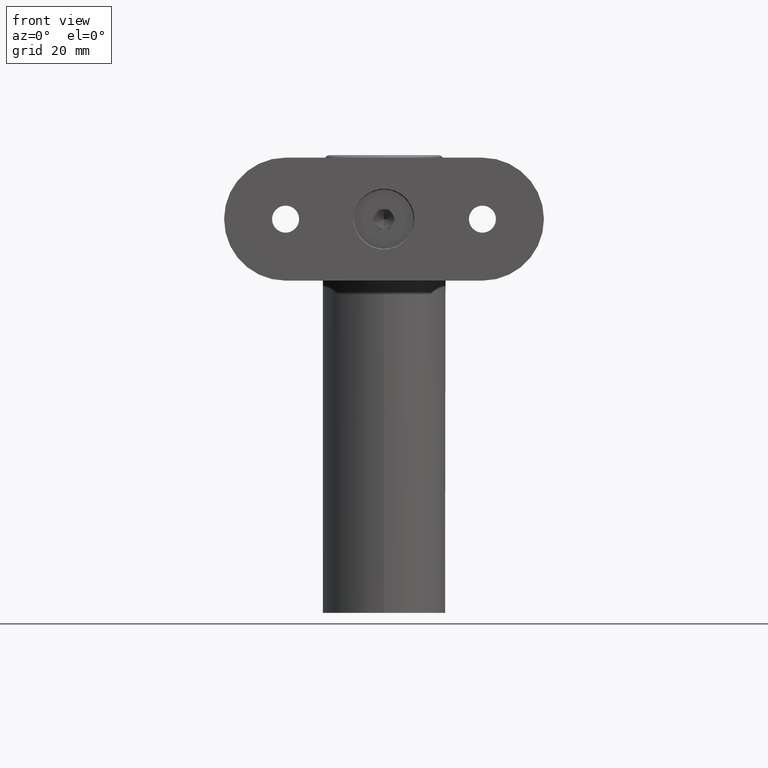
[diagram: clean part render]
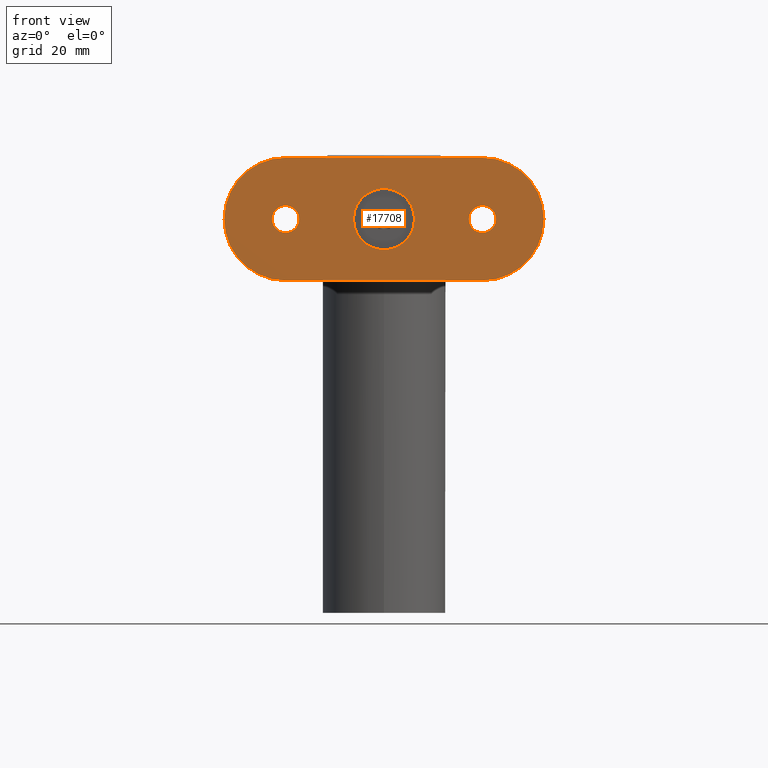
[diagram: same view with one face highlighted and labeled with its STEP entity id]
A machine part, front view. The second image highlights one B-rep face of the part: STEP entity #17708.
In plain terms, the highlighted planar face has unit normal (-0, 1, -0).
Its self-contained STEP definition (entity closure, byte-faithful):
#3 = AXIS2_PLACEMENT_3D ( 'NONE', #701, #11552, #11491 ) ;
#701 = CARTESIAN_POINT ( 'NONE',  ( 0.000000000000000000, 2.000000000000001776, -20.00000000000000355 ) ) ;
#1814 = LINE ( 'NONE', #9295, #7294 ) ;
#2335 = DIRECTION ( 'NONE',  ( 0.000000000000000000, 0.000000000000000000, -1.000000000000000000 ) ) ;
#2587 = CIRCLE ( 'NONE', #17169, 2.749999999999999112 ) ;
#2764 = FACE_BOUND ( 'NONE', #18467, .T. ) ;
#3061 = DIRECTION ( 'NONE',  ( 0.000000000000000000, 0.000000000000000000, -1.000000000000000000 ) ) ;
#3067 = CARTESIAN_POINT ( 'NONE',  ( 0.000000000000000000, 2.000000000000001776, 20.00000000000000000 ) ) ;
#3829 = CARTESIAN_POINT ( 'NONE',  ( 12.49999999999999645, 2.000000000000001776, -20.00000000000000355 ) ) ;
#4493 = VECTOR ( 'NONE', #2335, 1000.000000000000000 ) ;
#4657 = VERTEX_POINT ( 'NONE', #17727 ) ;
#5150 = ORIENTED_EDGE ( 'NONE', *, *, #10552, .F. ) ;
#5397 = CARTESIAN_POINT ( 'NONE',  ( 0.000000000000000000, 2.000000000000001776, 0.000000000000000000 ) ) ;
#5648 = AXIS2_PLACEMENT_3D ( 'NONE', #19253, #10252, #16342 ) ;
#5781 = VERTEX_POINT ( 'NONE', #14085 ) ;
#5865 = EDGE_CURVE ( 'NONE', #5781, #4657, #6717, .T. ) ;
#6243 = AXIS2_PLACEMENT_3D ( 'NONE', #7435, #14838, #18199 ) ;
#6267 = VERTEX_POINT ( 'NONE', #15322 ) ;
#6379 = CIRCLE ( 'NONE', #17323, 6.200000000000001066 ) ;
#6410 = CARTESIAN_POINT ( 'NONE',  ( 0.000000000000000000, 2.000000000000001776, -32.50000000000000000 ) ) ;
#6427 = DIRECTION ( 'NONE',  ( 8.881784197001252323E-16, 0.000000000000000000, -1.000000000000000000 ) ) ;
#6551 = CARTESIAN_POINT ( 'NONE',  ( 0.000000000000000000, 2.000000000000001776, 20.00000000000000000 ) ) ;
#6717 = CIRCLE ( 'NONE', #14293, 2.749999999999999112 ) ;
#6746 = DIRECTION ( 'NONE',  ( 0.000000000000000000, 1.000000000000000000, 0.000000000000000000 ) ) ;
#6798 = FACE_BOUND ( 'NONE', #8223, .T. ) ;
#6861 = LINE ( 'NONE', #16255, #4493 ) ;
#7026 = DIRECTION ( 'NONE',  ( 0.000000000000000000, 1.000000000000000000, 0.000000000000000000 ) ) ;
#7030 = CIRCLE ( 'NONE', #11352, 12.49999999999999645 ) ;
#7076 = CARTESIAN_POINT ( 'NONE',  ( 0.000000000000000000, 2.000000000000001776, 20.00000000000000000 ) ) ;
#7282 = EDGE_CURVE ( 'NONE', #10695, #9007, #7030, .T. ) ;
#7285 = FACE_OUTER_BOUND ( 'NONE', #10263, .T. ) ;
#7294 = VECTOR ( 'NONE', #16863, 1000.000000000000000 ) ;
#7435 = CARTESIAN_POINT ( 'NONE',  ( 0.000000000000000000, 2.000000000000001776, 20.00000000000000000 ) ) ;
#7653 = DIRECTION ( 'NONE',  ( 0.000000000000000000, -1.000000000000000000, 0.000000000000000000 ) ) ;
#7659 = EDGE_CURVE ( 'NONE', #4657, #5781, #17485, .T. ) ;
#7976 = ORIENTED_EDGE ( 'NONE', *, *, #16733, .T. ) ;
#8223 = EDGE_LOOP ( 'NONE', ( #11694, #18075 ) ) ;
#8793 = CIRCLE ( 'NONE', #6243, 12.50000000000000000 ) ;
#8794 = EDGE_CURVE ( 'NONE', #14181, #9007, #6861, .T. ) ;
#8915 = CARTESIAN_POINT ( 'NONE',  ( -12.50000000000001066, 2.000000000000001776, -20.00000000000000355 ) ) ;
#8968 = FACE_BOUND ( 'NONE', #14114, .T. ) ;
#8995 = CIRCLE ( 'NONE', #5648, 6.200000000000001066 ) ;
#9007 = VERTEX_POINT ( 'NONE', #8915 ) ;
#9140 = AXIS2_PLACEMENT_3D ( 'NONE', #12239, #7653, #3061 ) ;
#9295 = CARTESIAN_POINT ( 'NONE',  ( 12.49999999999999645, 2.000000000000001776, 32.50000000000000000 ) ) ;
#9483 = ORIENTED_EDGE ( 'NONE', *, *, #11752, .F. ) ;
#9657 = AXIS2_PLACEMENT_3D ( 'NONE', #6551, #18846, #6427 ) ;
#10252 = DIRECTION ( 'NONE',  ( 0.000000000000000000, -1.000000000000000000, 0.000000000000000000 ) ) ;
#10263 = EDGE_LOOP ( 'NONE', ( #17900, #15148, #10272, #17227, #7976, #19348 ) ) ;
#10272 = ORIENTED_EDGE ( 'NONE', *, *, #7282, .T. ) ;
#10477 = AXIS2_PLACEMENT_3D ( 'NONE', #3067, #10774, #19832 ) ;
#10552 = EDGE_CURVE ( 'NONE', #16421, #18427, #12164, .T. ) ;
#10695 = VERTEX_POINT ( 'NONE', #6410 ) ;
#10706 = AXIS2_PLACEMENT_3D ( 'NONE', #13304, #7026, #17865 ) ;
#10774 = DIRECTION ( 'NONE',  ( 0.000000000000000000, 1.000000000000000000, 0.000000000000000000 ) ) ;
#11116 = EDGE_CURVE ( 'NONE', #12173, #13318, #8793, .T. ) ;
#11352 = AXIS2_PLACEMENT_3D ( 'NONE', #17214, #18769, #17146 ) ;
#11491 = DIRECTION ( 'NONE',  ( 0.000000000000000000, 0.000000000000000000, -1.000000000000000000 ) ) ;
#11552 = DIRECTION ( 'NONE',  ( -0.000000000000000000, 1.000000000000000000, -0.000000000000000000 ) ) ;
#11694 = ORIENTED_EDGE ( 'NONE', *, *, #13566, .T. ) ;
#11752 = EDGE_CURVE ( 'NONE', #18427, #16421, #2587, .T. ) ;
#12164 = CIRCLE ( 'NONE', #10477, 2.749999999999999112 ) ;
#12173 = VERTEX_POINT ( 'NONE', #14334 ) ;
#12239 = CARTESIAN_POINT ( 'NONE',  ( -12.50000000000001066, 2.000000000000001776, 32.50000000000005684 ) ) ;
#12360 = CARTESIAN_POINT ( 'NONE',  ( 3.367778697655220026E-16, 2.000000000000001776, 17.25000000000000000 ) ) ;
#13154 = EDGE_CURVE ( 'NONE', #18499, #6267, #6379, .T. ) ;
#13304 = CARTESIAN_POINT ( 'NONE',  ( 0.000000000000000000, 2.000000000000001776, -20.00000000000000000 ) ) ;
#13318 = VERTEX_POINT ( 'NONE', #18192 ) ;
#13496 = DIRECTION ( 'NONE',  ( 0.000000000000000000, 0.000000000000000000, -1.000000000000000000 ) ) ;
#13566 = EDGE_CURVE ( 'NONE', #6267, #18499, #8995, .T. ) ;
#13695 = CARTESIAN_POINT ( 'NONE',  ( 7.592810154713590821E-16, 2.000000000000001776, 6.200000000000001066 ) ) ;
#13752 = ORIENTED_EDGE ( 'NONE', *, *, #5865, .F. ) ;
#13810 = CIRCLE ( 'NONE', #3, 12.49999999999999645 ) ;
#13854 = CARTESIAN_POINT ( 'NONE',  ( -12.50000000000001066, 2.000000000000001776, 20.00000000000000000 ) ) ;
#13859 = EDGE_CURVE ( 'NONE', #13318, #19172, #1814, .T. ) ;
#13911 = PLANE ( 'NONE',  #9140 ) ;
#14085 = CARTESIAN_POINT ( 'NONE',  ( 0.000000000000000000, 2.000000000000001776, -17.25000000000000000 ) ) ;
#14114 = EDGE_LOOP ( 'NONE', ( #9483, #5150 ) ) ;
#14181 = VERTEX_POINT ( 'NONE', #13854 ) ;
#14293 = AXIS2_PLACEMENT_3D ( 'NONE', #17567, #6746, #17631 ) ;
#14334 = CARTESIAN_POINT ( 'NONE',  ( 0.000000000000000000, 2.000000000000001776, 32.50000000000000000 ) ) ;
#14522 = ORIENTED_EDGE ( 'NONE', *, *, #7659, .F. ) ;
#14619 = DIRECTION ( 'NONE',  ( 0.000000000000000000, 0.000000000000000000, 1.000000000000000000 ) ) ;
#14838 = DIRECTION ( 'NONE',  ( -0.000000000000000000, 1.000000000000000000, -0.000000000000000000 ) ) ;
#15091 = DIRECTION ( 'NONE',  ( 0.000000000000000000, -1.000000000000000000, 0.000000000000000000 ) ) ;
#15148 = ORIENTED_EDGE ( 'NONE', *, *, #16102, .T. ) ;
#15322 = CARTESIAN_POINT ( 'NONE',  ( 0.000000000000000000, 2.000000000000001776, -6.200000000000001066 ) ) ;
#16102 = EDGE_CURVE ( 'NONE', #19172, #10695, #13810, .T. ) ;
#16255 = CARTESIAN_POINT ( 'NONE',  ( -12.50000000000001066, 2.000000000000001776, 32.50000000000005684 ) ) ;
#16342 = DIRECTION ( 'NONE',  ( 0.000000000000000000, 0.000000000000000000, -1.000000000000000000 ) ) ;
#16372 = CARTESIAN_POINT ( 'NONE',  ( 0.000000000000000000, 2.000000000000001776, 22.75000000000000000 ) ) ;
#16421 = VERTEX_POINT ( 'NONE', #12360 ) ;
#16733 = EDGE_CURVE ( 'NONE', #14181, #12173, #19329, .T. ) ;
#16863 = DIRECTION ( 'NONE',  ( 0.000000000000000000, 0.000000000000000000, -1.000000000000000000 ) ) ;
#17146 = DIRECTION ( 'NONE',  ( 0.000000000000000000, 0.000000000000000000, -1.000000000000000000 ) ) ;
#17169 = AXIS2_PLACEMENT_3D ( 'NONE', #7076, #17915, #14619 ) ;
#17214 = CARTESIAN_POINT ( 'NONE',  ( 0.000000000000000000, 2.000000000000001776, -20.00000000000000355 ) ) ;
#17227 = ORIENTED_EDGE ( 'NONE', *, *, #8794, .F. ) ;
#17323 = AXIS2_PLACEMENT_3D ( 'NONE', #5397, #15091, #13496 ) ;
#17485 = CIRCLE ( 'NONE', #10706, 2.749999999999999112 ) ;
#17567 = CARTESIAN_POINT ( 'NONE',  ( 0.000000000000000000, 2.000000000000001776, -20.00000000000000000 ) ) ;
#17631 = DIRECTION ( 'NONE',  ( 0.000000000000000000, 0.000000000000000000, 1.000000000000000000 ) ) ;
#17708 = ADVANCED_FACE ( 'NONE', ( #6798, #8968, #2764, #7285 ), #13911, .F. ) ;
#17727 = CARTESIAN_POINT ( 'NONE',  ( 3.367778697655220026E-16, 2.000000000000001776, -22.75000000000000000 ) ) ;
#17865 = DIRECTION ( 'NONE',  ( 0.000000000000000000, 0.000000000000000000, 1.000000000000000000 ) ) ;
#17900 = ORIENTED_EDGE ( 'NONE', *, *, #13859, .T. ) ;
#17915 = DIRECTION ( 'NONE',  ( 0.000000000000000000, 1.000000000000000000, 0.000000000000000000 ) ) ;
#18075 = ORIENTED_EDGE ( 'NONE', *, *, #13154, .T. ) ;
#18192 = CARTESIAN_POINT ( 'NONE',  ( 12.49999999999999645, 2.000000000000001776, 20.00000000000000000 ) ) ;
#18199 = DIRECTION ( 'NONE',  ( 0.000000000000000000, 0.000000000000000000, -1.000000000000000000 ) ) ;
#18427 = VERTEX_POINT ( 'NONE', #16372 ) ;
#18467 = EDGE_LOOP ( 'NONE', ( #13752, #14522 ) ) ;
#18499 = VERTEX_POINT ( 'NONE', #13695 ) ;
#18769 = DIRECTION ( 'NONE',  ( -0.000000000000000000, 1.000000000000000000, -0.000000000000000000 ) ) ;
#18846 = DIRECTION ( 'NONE',  ( -0.000000000000000000, 1.000000000000000000, -0.000000000000000000 ) ) ;
#19172 = VERTEX_POINT ( 'NONE', #3829 ) ;
#19253 = CARTESIAN_POINT ( 'NONE',  ( 0.000000000000000000, 2.000000000000001776, 0.000000000000000000 ) ) ;
#19329 = CIRCLE ( 'NONE', #9657, 12.50000000000000000 ) ;
#19348 = ORIENTED_EDGE ( 'NONE', *, *, #11116, .T. ) ;
#19832 = DIRECTION ( 'NONE',  ( 0.000000000000000000, 0.000000000000000000, 1.000000000000000000 ) ) ;